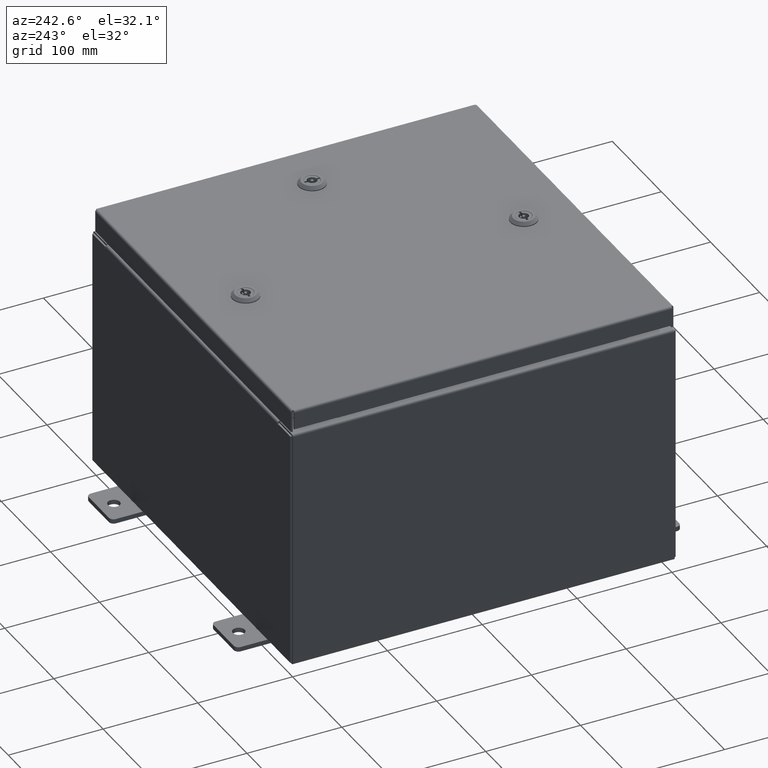
[diagram: clean part render]
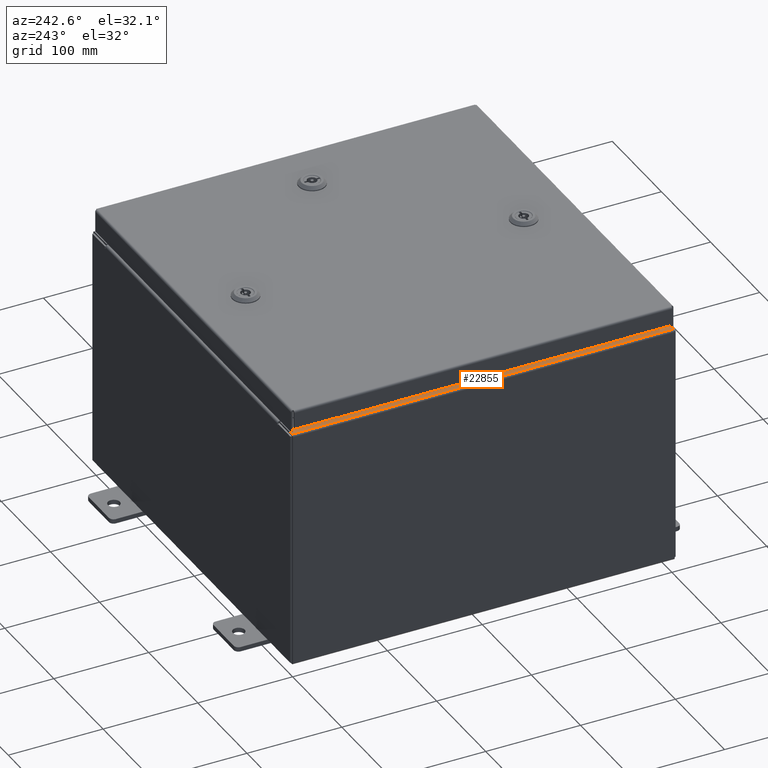
[diagram: same view with one face highlighted and labeled with its STEP entity id]
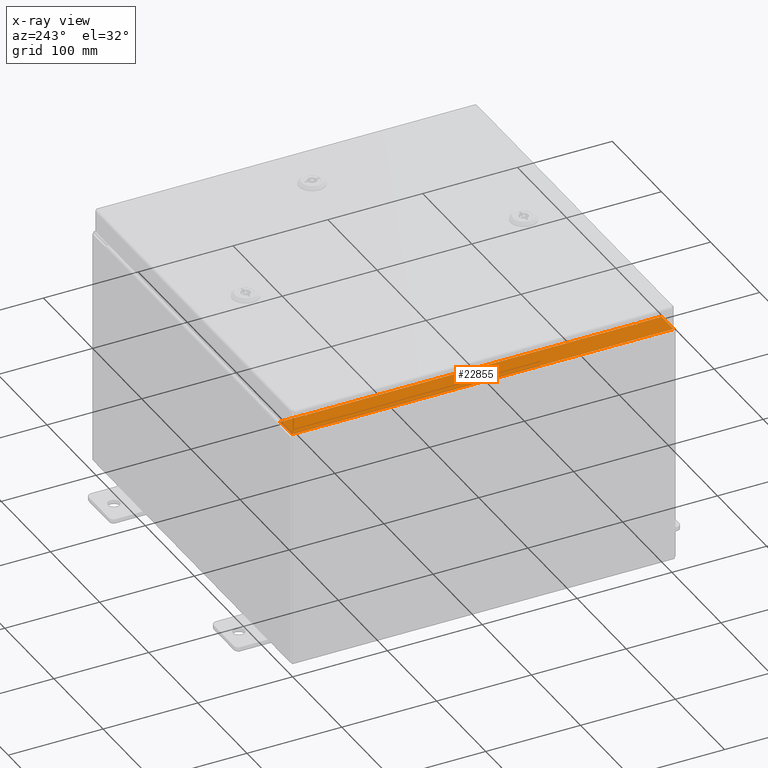
[diagram: x-ray of the same camera — body ghosted, the highlighted face saturated]
A machine part, auxiliary view. The second image highlights one B-rep face of the part: STEP entity #22855.
The next image is the same camera in x-ray: the body ghosted, the highlighted face saturated — about 0% of this face is hidden behind the body in this view.
In plain terms, the highlighted planar face has unit normal (0, -0, -1).
Its self-contained STEP definition (entity closure, byte-faithful):
#770 = CARTESIAN_POINT ( 'NONE',  ( -6.696293147031927100E-014, 7.925299999999998200, 9.925300000000053300 ) ) ;
#2279 = CARTESIAN_POINT ( 'NONE',  ( -7.912300000000035600, -7.925300000000000000, 9.925300000000001800 ) ) ;
#2672 = LINE ( 'NONE', #42786, #54027 ) ;
#4478 = EDGE_CURVE ( 'NONE', #28963, #36222, #53825, .T. ) ;
#4973 = DIRECTION ( 'NONE',  ( -1.000000000000000000, -2.170286390199908100E-014, 0.0000000000000000000 ) ) ;
#6106 = ORIENTED_EDGE ( 'NONE', *, *, #53384, .F. ) ;
#6361 = DIRECTION ( 'NONE',  ( -6.720413268546777900E-015, 1.378798528088154900E-016, 1.000000000000000000 ) ) ;
#6695 = ORIENTED_EDGE ( 'NONE', *, *, #46345, .F. ) ;
#7331 = VERTEX_POINT ( 'NONE', #42644 ) ;
#7655 = EDGE_CURVE ( 'NONE', #45097, #22643, #9107, .T. ) ;
#8637 = EDGE_CURVE ( 'NONE', #35869, #17929, #23447, .T. ) ;
#8981 = AXIS2_PLACEMENT_3D ( 'NONE', #35254, #6361, #40090 ) ;
#9107 = CIRCLE ( 'NONE', #8981, 0.01867499999999949400 ) ;
#9771 = AXIS2_PLACEMENT_3D ( 'NONE', #14863, #39079, #10192 ) ;
#10068 = CARTESIAN_POINT ( 'NONE',  ( -7.912300000000035600, 7.925299999999998200, 9.925299999999998200 ) ) ;
#10192 = DIRECTION ( 'NONE',  ( -1.000000000000000000, 0.0000000000000000000, -6.720413268546777900E-015 ) ) ;
#11866 = ORIENTED_EDGE ( 'NONE', *, *, #32597, .F. ) ;
#12536 = VERTEX_POINT ( 'NONE', #45637 ) ;
#14353 = VERTEX_POINT ( 'NONE', #26993 ) ;
#14863 = CARTESIAN_POINT ( 'NONE',  ( -6.696293147031927100E-014, 1.368498903083343600E-015, 9.925300000000053300 ) ) ;
#14956 = DIRECTION ( 'NONE',  ( -0.0000000000000000000, 1.000000000000000000, -1.378798528088154900E-016 ) ) ;
#15384 = VECTOR ( 'NONE', #20520, 39.37007874015748100 ) ;
#15642 = CARTESIAN_POINT ( 'NONE',  ( -6.949700000000035500, 1.847610709616047500E-015, 9.925300000000007100 ) ) ;
#16235 = DIRECTION ( 'NONE',  ( -0.0000000000000000000, -1.000000000000000000, -0.0000000000000000000 ) ) ;
#16806 = ORIENTED_EDGE ( 'NONE', *, *, #18897, .F. ) ;
#17929 = VERTEX_POINT ( 'NONE', #54667 ) ;
#18190 = ORIENTED_EDGE ( 'NONE', *, *, #48635, .F. ) ;
#18312 = AXIS2_PLACEMENT_3D ( 'NONE', #21391, #55069, #26233 ) ;
#18337 = EDGE_CURVE ( 'NONE', #12536, #35869, #49156, .T. ) ;
#18897 = EDGE_CURVE ( 'NONE', #48681, #14353, #22771, .T. ) ;
#19363 = CARTESIAN_POINT ( 'NONE',  ( -6.962700000000038100, -6.843749999999996400, 9.925300000000007100 ) ) ;
#20520 = DIRECTION ( 'NONE',  ( 6.893992640440775600E-017, 1.000000000000000000, -1.378798528088150200E-016 ) ) ;
#21260 = DIRECTION ( 'NONE',  ( 1.000000000000000000, 0.0000000000000000000, 0.0000000000000000000 ) ) ;
#21391 = CARTESIAN_POINT ( 'NONE',  ( -7.000050000000038100, -6.862424999999996400, 9.925300000000007100 ) ) ;
#22163 = LINE ( 'NONE', #33915, #46243 ) ;
#22643 = VERTEX_POINT ( 'NONE', #22919 ) ;
#22771 = CIRCLE ( 'NONE', #18312, 0.01867499999999949400 ) ;
#22855 = ADVANCED_FACE ( 'NONE', ( #30158 ), #34255, .F. ) ;
#22919 = CARTESIAN_POINT ( 'NONE',  ( -7.000050000000038100, 6.843749999999995600, 9.925300000000005300 ) ) ;
#23203 = CARTESIAN_POINT ( 'NONE',  ( -6.949700000000035500, 1.847610709616047500E-015, 9.925300000000007100 ) ) ;
#23447 = LINE ( 'NONE', #770, #36239 ) ;
#24181 = VERTEX_POINT ( 'NONE', #50197 ) ;
#25072 = VECTOR ( 'NONE', #61753, 39.37007874015748100 ) ;
#26233 = DIRECTION ( 'NONE',  ( 1.000000000000000000, 0.0000000000000000000, 0.0000000000000000000 ) ) ;
#26993 = CARTESIAN_POINT ( 'NONE',  ( -7.000050000000038100, -6.881099999999996400, 9.925300000000005300 ) ) ;
#27084 = EDGE_CURVE ( 'NONE', #46049, #28963, #2672, .T. ) ;
#27989 = EDGE_CURVE ( 'NONE', #24181, #48681, #56997, .T. ) ;
#28209 = ORIENTED_EDGE ( 'NONE', *, *, #8637, .T. ) ;
#28963 = VERTEX_POINT ( 'NONE', #46175 ) ;
#29858 = VECTOR ( 'NONE', #53014, 39.37007874015748100 ) ;
#30158 = FACE_OUTER_BOUND ( 'NONE', #52647, .T. ) ;
#32597 = EDGE_CURVE ( 'NONE', #22643, #7331, #49781, .T. ) ;
#33915 = CARTESIAN_POINT ( 'NONE',  ( -6.949700000000035500, 6.881099999999996400, 9.925300000000007100 ) ) ;
#34255 = PLANE ( 'NONE',  #9771 ) ;
#34322 = DIRECTION ( 'NONE',  ( 1.000000000000000000, 1.120068878091129800E-015, 6.720413268546778700E-015 ) ) ;
#34353 = CARTESIAN_POINT ( 'NONE',  ( -7.000050000000038100, -6.881099999999996400, 9.925300000000007100 ) ) ;
#34580 = DIRECTION ( 'NONE',  ( -1.000000000000000000, -1.050973848243613100E-045, -6.720413268546778700E-015 ) ) ;
#35254 = CARTESIAN_POINT ( 'NONE',  ( -7.000050000000038100, 6.862424999999994700, 9.925300000000007100 ) ) ;
#35869 = VERTEX_POINT ( 'NONE', #38687 ) ;
#36222 = VERTEX_POINT ( 'NONE', #60004 ) ;
#36239 = VECTOR ( 'NONE', #34580, 39.37007874015748100 ) ;
#36955 = VECTOR ( 'NONE', #21260, 39.37007874015748100 ) ;
#37226 = ORIENTED_EDGE ( 'NONE', *, *, #7655, .F. ) ;
#38191 = ORIENTED_EDGE ( 'NONE', *, *, #27989, .F. ) ;
#38687 = CARTESIAN_POINT ( 'NONE',  ( -6.949700000000035500, 7.925299999999998200, 9.925300000000007100 ) ) ;
#39079 = DIRECTION ( 'NONE',  ( 6.720413268546777900E-015, -1.378798528088154900E-016, -1.000000000000000000 ) ) ;
#39171 = DIRECTION ( 'NONE',  ( 1.000000000000000000, 0.0000000000000000000, 0.0000000000000000000 ) ) ;
#40090 = DIRECTION ( 'NONE',  ( 1.000000000000000000, 0.0000000000000000000, 0.0000000000000000000 ) ) ;
#42644 = CARTESIAN_POINT ( 'NONE',  ( -6.962700000000038100, 6.843749999999995600, 9.925300000000007100 ) ) ;
#42786 = CARTESIAN_POINT ( 'NONE',  ( -5.808604959078365600E-014, -7.925299999999991100, 9.925300000000055100 ) ) ;
#43515 = ORIENTED_EDGE ( 'NONE', *, *, #27084, .T. ) ;
#44183 = VECTOR ( 'NONE', #16235, 39.37007874015748100 ) ;
#44596 = EDGE_CURVE ( 'NONE', #14353, #36222, #55722, .T. ) ;
#45097 = VERTEX_POINT ( 'NONE', #58486 ) ;
#45247 = CARTESIAN_POINT ( 'NONE',  ( -7.000050000000038100, 6.843749999999995600, 9.925300000000007100 ) ) ;
#45637 = CARTESIAN_POINT ( 'NONE',  ( -6.949700000000035500, 6.881099999999996400, 9.925300000000007100 ) ) ;
#46049 = VERTEX_POINT ( 'NONE', #2279 ) ;
#46175 = CARTESIAN_POINT ( 'NONE',  ( -6.949700000000036400, -7.925299999999998200, 9.925300000000007100 ) ) ;
#46243 = VECTOR ( 'NONE', #4973, 39.37007874015748100 ) ;
#46345 = EDGE_CURVE ( 'NONE', #46049, #17929, #50352, .T. ) ;
#46844 = ORIENTED_EDGE ( 'NONE', *, *, #4478, .T. ) ;
#48635 = EDGE_CURVE ( 'NONE', #7331, #24181, #57013, .T. ) ;
#48681 = VERTEX_POINT ( 'NONE', #50136 ) ;
#48814 = VECTOR ( 'NONE', #14956, 39.37007874015748100 ) ;
#49156 = LINE ( 'NONE', #23203, #25072 ) ;
#49781 = LINE ( 'NONE', #45247, #36955 ) ;
#50136 = CARTESIAN_POINT ( 'NONE',  ( -7.000050000000038100, -6.843749999999995600, 9.925300000000007100 ) ) ;
#50197 = CARTESIAN_POINT ( 'NONE',  ( -6.962700000000038100, -6.843749999999996400, 9.925300000000007100 ) ) ;
#50352 = LINE ( 'NONE', #10068, #48814 ) ;
#52647 = EDGE_LOOP ( 'NONE', ( #6106, #58252, #28209, #6695, #43515, #46844, #54964, #16806, #38191, #18190, #11866, #37226 ) ) ;
#53014 = DIRECTION ( 'NONE',  ( -1.000000000000000000, 0.0000000000000000000, 0.0000000000000000000 ) ) ;
#53384 = EDGE_CURVE ( 'NONE', #12536, #45097, #22163, .T. ) ;
#53825 = LINE ( 'NONE', #15642, #15384 ) ;
#54027 = VECTOR ( 'NONE', #34322, 39.37007874015748100 ) ;
#54221 = VECTOR ( 'NONE', #39171, 39.37007874015748100 ) ;
#54667 = CARTESIAN_POINT ( 'NONE',  ( -7.912300000000035600, 7.925299999999998200, 9.925299999999998200 ) ) ;
#54964 = ORIENTED_EDGE ( 'NONE', *, *, #44596, .F. ) ;
#55069 = DIRECTION ( 'NONE',  ( -6.720413268546777900E-015, 1.378798528088154900E-016, 1.000000000000000000 ) ) ;
#55722 = LINE ( 'NONE', #34353, #54221 ) ;
#56997 = LINE ( 'NONE', #19363, #29858 ) ;
#57013 = LINE ( 'NONE', #59466, #44183 ) ;
#58252 = ORIENTED_EDGE ( 'NONE', *, *, #18337, .T. ) ;
#58486 = CARTESIAN_POINT ( 'NONE',  ( -7.000050000000038100, 6.881099999999994700, 9.925300000000005300 ) ) ;
#59466 = CARTESIAN_POINT ( 'NONE',  ( -6.962700000000038100, 6.843749999999996400, 9.925300000000007100 ) ) ;
#60004 = CARTESIAN_POINT ( 'NONE',  ( -6.949700000000035500, -6.881099999999995600, 9.925300000000007100 ) ) ;
#61753 = DIRECTION ( 'NONE',  ( 6.893992640440775600E-017, 1.000000000000000000, -1.378798528088150200E-016 ) ) ;